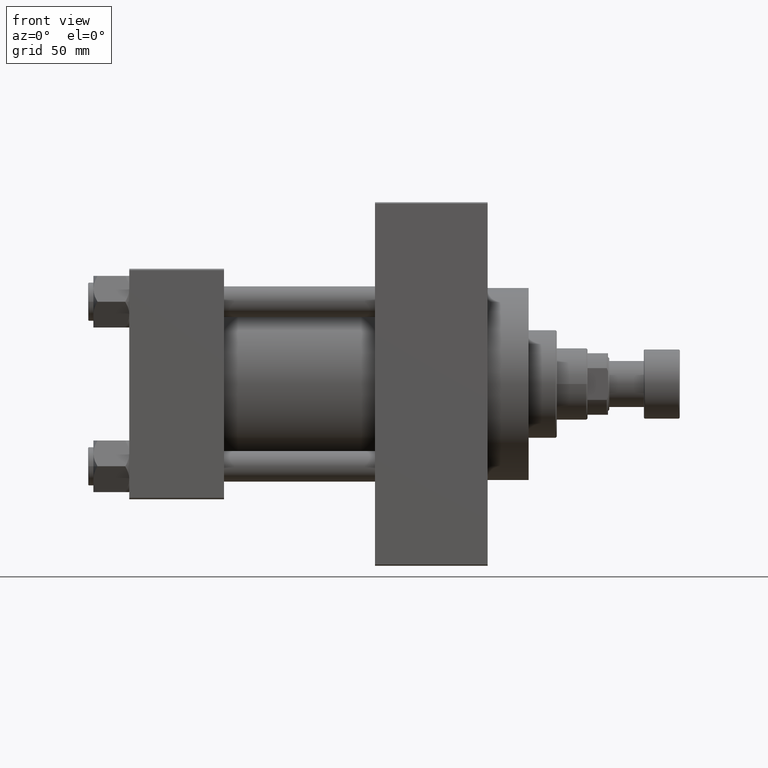
[diagram: clean part render]
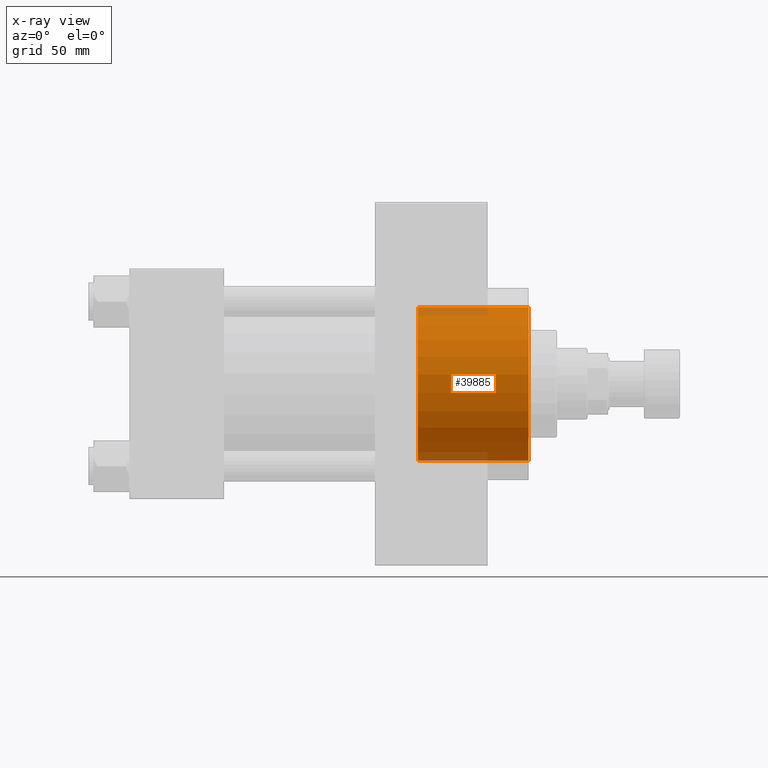
[diagram: x-ray — body ghosted, one internal face saturated and labeled with its STEP entity id]
A machine part, front view, then the same camera in x-ray: the body is ghosted and one INTERNAL B-rep face — a face not visible from any outside direction — is saturated and labeled: STEP entity #39885.
In plain terms, the highlighted cylindrical surface (partial cylindrical patch) has radius 30 mm, axis along (1, 0, 0).
Its self-contained STEP definition (entity closure, byte-faithful):
#205 = CIRCLE ( 'NONE', #40987, 30.00000000000000000 ) ;
#1751 = VECTOR ( 'NONE', #4822, 1000.000000000000000 ) ;
#2203 = CARTESIAN_POINT ( 'NONE',  ( 112.7400000000000375, 0.000000000000000000, -30.00000000000000000 ) ) ;
#2465 = VERTEX_POINT ( 'NONE', #44140 ) ;
#3871 = DIRECTION ( 'NONE',  ( 0.000000000000000000, 0.000000000000000000, -1.000000000000000000 ) ) ;
#4100 = ORIENTED_EDGE ( 'NONE', *, *, #46552, .T. ) ;
#4113 = CARTESIAN_POINT ( 'NONE',  ( 112.7400000000000375, 0.000000000000000000, -30.00000000000000000 ) ) ;
#4793 = ORIENTED_EDGE ( 'NONE', *, *, #7520, .F. ) ;
#4822 = DIRECTION ( 'NONE',  ( 1.000000000000000000, -0.000000000000000000, -0.000000000000000000 ) ) ;
#6294 = VERTEX_POINT ( 'NONE', #30897 ) ;
#6299 = CARTESIAN_POINT ( 'NONE',  ( 156.0000000000000284, 0.000000000000000000, 0.000000000000000000 ) ) ;
#7398 = CARTESIAN_POINT ( 'NONE',  ( 112.7400000000000375, 0.000000000000000000, 0.000000000000000000 ) ) ;
#7520 = EDGE_CURVE ( 'NONE', #2465, #36347, #10558, .T. ) ;
#10116 = DIRECTION ( 'NONE',  ( 0.000000000000000000, 0.000000000000000000, -1.000000000000000000 ) ) ;
#10404 = DIRECTION ( 'NONE',  ( 1.000000000000000000, 0.000000000000000000, 0.000000000000000000 ) ) ;
#10558 = CIRCLE ( 'NONE', #28232, 30.00000000000000000 ) ;
#13736 = CARTESIAN_POINT ( 'NONE',  ( 112.7400000000000375, 0.000000000000000000, 0.000000000000000000 ) ) ;
#14398 = DIRECTION ( 'NONE',  ( 0.000000000000000000, 0.000000000000000000, -1.000000000000000000 ) ) ;
#15392 = LINE ( 'NONE', #45262, #42878 ) ;
#19962 = DIRECTION ( 'NONE',  ( 1.000000000000000000, -0.000000000000000000, -0.000000000000000000 ) ) ;
#24998 = CYLINDRICAL_SURFACE ( 'NONE', #47291, 30.00000000000000000 ) ;
#25243 = FACE_OUTER_BOUND ( 'NONE', #41670, .T. ) ;
#26779 = LINE ( 'NONE', #4113, #1751 ) ;
#27155 = VERTEX_POINT ( 'NONE', #37674 ) ;
#28232 = AXIS2_PLACEMENT_3D ( 'NONE', #13736, #28433, #10116 ) ;
#28433 = DIRECTION ( 'NONE',  ( 1.000000000000000000, 0.000000000000000000, 0.000000000000000000 ) ) ;
#30897 = CARTESIAN_POINT ( 'NONE',  ( 156.0000000000000284, 0.000000000000000000, -30.00000000000000000 ) ) ;
#35587 = EDGE_CURVE ( 'NONE', #27155, #6294, #205, .T. ) ;
#36347 = VERTEX_POINT ( 'NONE', #2203 ) ;
#36521 = EDGE_CURVE ( 'NONE', #36347, #6294, #26779, .T. ) ;
#36524 = ORIENTED_EDGE ( 'NONE', *, *, #36521, .F. ) ;
#37674 = CARTESIAN_POINT ( 'NONE',  ( 156.0000000000000284, 3.673940397442059178E-15, 30.00000000000000000 ) ) ;
#39885 = ADVANCED_FACE ( 'NONE', ( #25243 ), #24998, .F. ) ;
#40406 = DIRECTION ( 'NONE',  ( 1.000000000000000000, -0.000000000000000000, -0.000000000000000000 ) ) ;
#40987 = AXIS2_PLACEMENT_3D ( 'NONE', #6299, #10404, #3871 ) ;
#41670 = EDGE_LOOP ( 'NONE', ( #4793, #4100, #42906, #36524 ) ) ;
#42878 = VECTOR ( 'NONE', #19962, 1000.000000000000000 ) ;
#42906 = ORIENTED_EDGE ( 'NONE', *, *, #35587, .T. ) ;
#44140 = CARTESIAN_POINT ( 'NONE',  ( 112.7400000000000375, 3.673940397442059178E-15, 30.00000000000000000 ) ) ;
#45262 = CARTESIAN_POINT ( 'NONE',  ( 112.7400000000000375, 3.673940397442059178E-15, 30.00000000000000000 ) ) ;
#46552 = EDGE_CURVE ( 'NONE', #2465, #27155, #15392, .T. ) ;
#47291 = AXIS2_PLACEMENT_3D ( 'NONE', #7398, #40406, #14398 ) ;